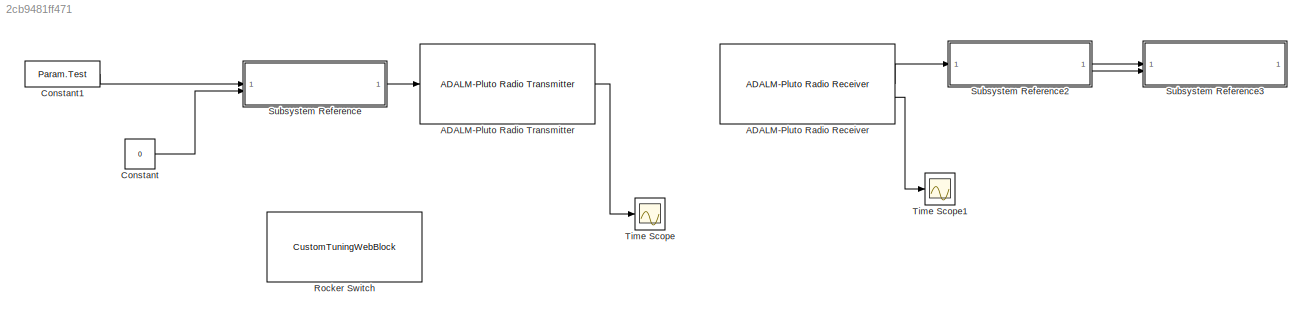
MODEL slx_2cb9481ff471
KIND model
CONFIG AbsTol = auto
CONFIG EnableMultiTasking = off
CONFIG FixedStep = auto
CONFIG MaxStep = auto
CONFIG MinStep = auto
CONFIG RelTol = 1e-3
CONFIG SampleTimeConstraint = Unconstrained
CONFIG SolverName = FixedStepAuto
CONFIG StartTime = 0.0
CONFIG StopFcn = set_param([bdroot '/Rocker Switch'], 'Value', '0')
CONFIG StopTime = inf
BLOCK [Reference] ADALM-Pluto Radio Receiver  REF=plutoradiolib/ADALM-Pluto Radio
Receiver
  SourceBlock = plutoradiolib/ADALM-Pluto Radio\nReceiver
  SourceType = comm.SDRRxPluto
BLOCK [Reference] ADALM-Pluto Radio Transmitter  REF=plutoradiolib/ADALM-Pluto Radio
Transmitter
  SourceBlock = plutoradiolib/ADALM-Pluto Radio\nTransmitter
  SourceType = comm.SDRTxPluto
BLOCK [Constant] Constant
  Value = 0
BLOCK [Constant] Constant1
  Value = Param.Test
  VectorParams1D = off
BLOCK [CustomTuningWebBlock] Rocker Switch
  Configuration = {"components":[{"name":"CustomSwitchStateComponent","settings":{"position":[0,0,1,1],"states":[{"HitRegion":{"position":[0,0,0.5,1]},"Image":{"position":[0.13,0,1,0.75],"size":[1,0.75],"src":"data:image\/svg+xml;base64,PHN2ZyB4bWxucz0iaHR0cDovL3d3dy53My5vcmcvMjAwMC9zdmciIHhtbG5zOnhsaW5rPSJodHRwOi8vd3d3LnczLm9yZy8xOTk5L3hsaW5rIiB2aWV3Qm94PSIwIDAgNzUgMjQuOCI+PGRlZnM+PHN0eWxlPi5jbHMtMXtmaWxsOnVybCgjc...<+8988ch>
  LabelPosition = Hide
  ShowInitialText = on
BLOCK [SubSystem] Subsystem Reference
  ReferencedSubsystem = bare_trans_QPSK
BLOCK [SubSystem] Subsystem Reference2
  ReferencedSubsystem = bare_recv_QPSK
BLOCK [SubSystem] Subsystem Reference3
  ReferencedSubsystem = test_received_frames
BLOCK [Scope] Time Scope
  Commented = on
  DefaultConfigurationName = spbscopes.TimeScopeBlockCfg
  Floating = off
  NumInputPorts = 1
  ScopeSpecificationString = spbscopes.TimeScopeBlockCfg('CurrentConfiguration', extmgr.ConfigurationSet(extmgr.Configuration('Core','General UI',true),extmgr.Configuration('Core','Source UI',true),extmgr.Configuration('Sources','WiredSimulink',true),extmgr.Configuration('Visuals','Time Domain',true,'DisplayPropertyDefaults',struct('MinYLimReal','-1.00000','MaxYLimReal','1.00000','YLabelReal','Amplitude','MinYLimMag','0.00000...<+1555ch>
  UserDataPersistent = on
BLOCK [Scope] Time Scope1
  Commented = on
  DefaultConfigurationName = spbscopes.TimeScopeBlockCfg
  Floating = off
  NumInputPorts = 1
  ScopeSpecificationString = spbscopes.TimeScopeBlockCfg('CurrentConfiguration', extmgr.ConfigurationSet(extmgr.Configuration('Core','General UI',true),extmgr.Configuration('Core','Source UI',true),extmgr.Configuration('Sources','WiredSimulink',true,'DataLoggingVariableName','ScopeData1'),extmgr.Configuration('Visuals','Time Domain',true,'DisplayPropertyDefaults',struct('MinYLimReal','0.9','MaxYLimReal','1.1','YLabelReal','Am...<+1562ch>
  UserDataPersistent = on
LINE ADALM-Pluto Radio Receiver:1 -> Subsystem Reference2:1
LINE ADALM-Pluto Radio Receiver:2 -> Time Scope1:1
LINE ADALM-Pluto Radio Transmitter:1 -> Time Scope:1
LINE Constant1:1 -> Subsystem Reference:1
LINE Constant:1 -> Subsystem Reference:2
LINE Subsystem Reference2:1 -> Subsystem Reference3:1
LINE Subsystem Reference2:2 -> Subsystem Reference3:2
LINE Subsystem Reference:1 -> ADALM-Pluto Radio Transmitter:1
